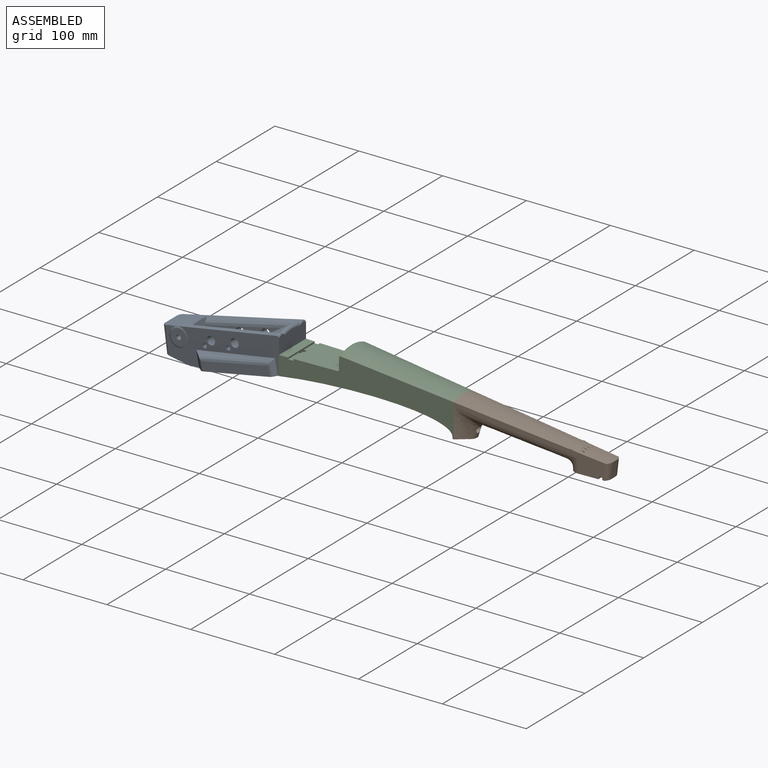
[diagram: assembled view]
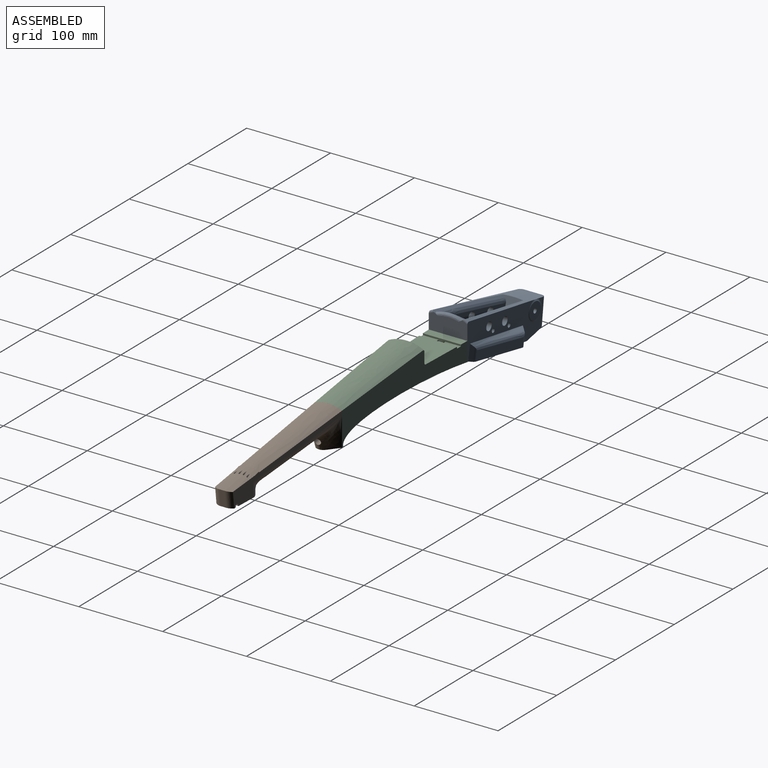
[diagram: assembled view, second angle]
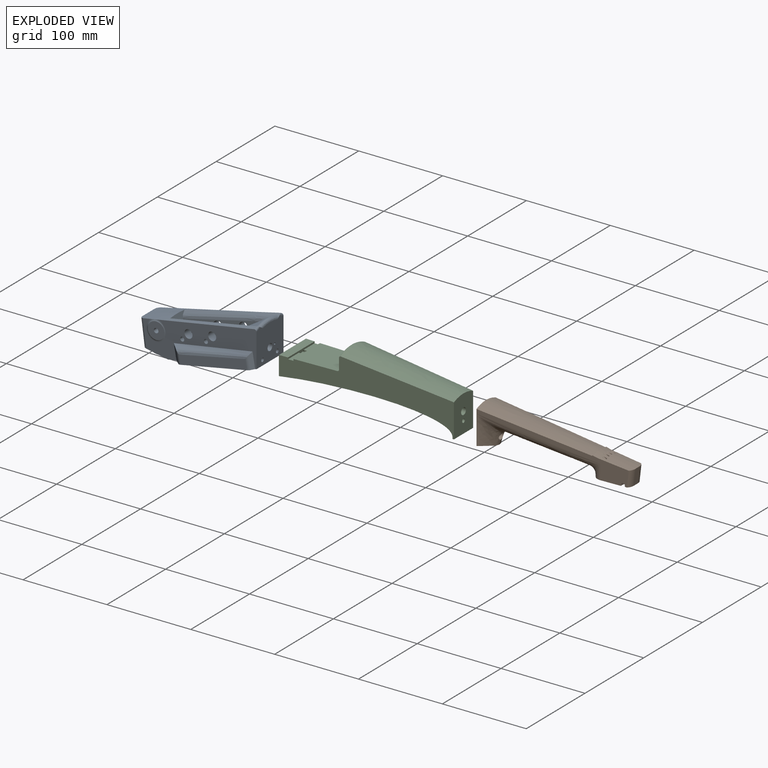
[diagram: exploded view]
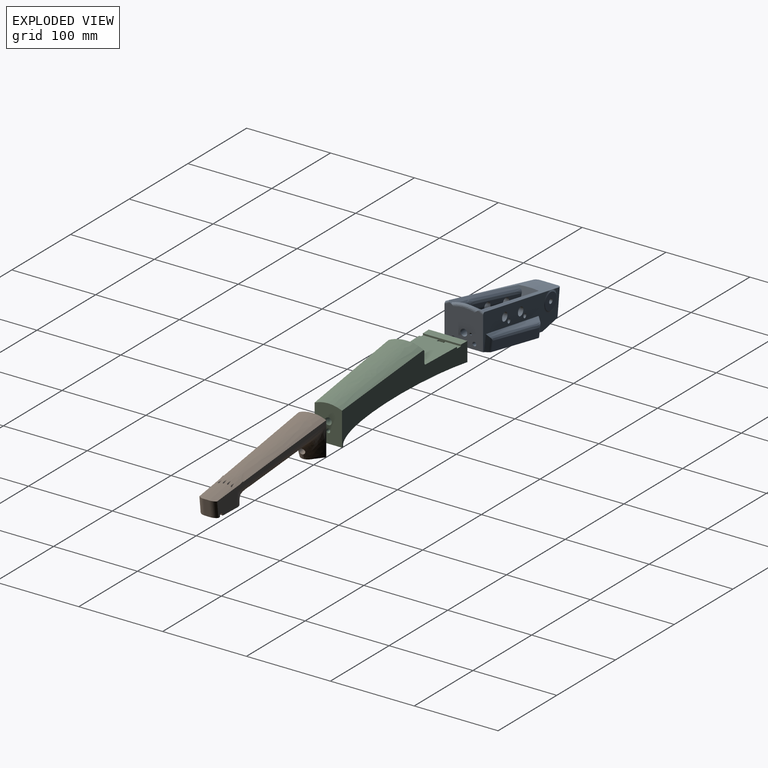
[diagram: exploded view, second angle]
ASSEMBLY  parts=3 mates=2
PART A: 106 faces, bbox 151.7x75x73.2 mm
  f0: plane 140.89x64.12mm, normal (-0.06,-1,0), area 3257.7mm2, adj f2,f10,f18,f20,f25,f26,f32,f35
  f1: plane 140.89x64.12mm, normal (-0.06,1,0), area 3258.4mm2, adj f2,f11,f18,f20,f23,f24,f33,f36
  f2: plane 47.82x44.77mm, normal (1,0,0), area 1824.9mm2, adj f0,f1,f12,f20,f27,f47,f48,f49
  f3: plane 30x27.35mm, normal (-0.14,0,0.99), area 657.1mm2, adj f4,f20,f68
  f4: torus R=16mm, axis (0.14,0,-0.99), area 135.3mm2, adj f3,f5,f6,f10,f11,f20
  f5: bspline ~2.96x1.23mm, area 0.5mm2, adj f4,f20
  f6: bspline ~3.21x1.27mm, area 0.5mm2, adj f4,f20
  f7: plane 43x13.75mm, normal (0.98,0,-0.19), area 557mm2, adj f9,f20,f94,f95,f96,f97,f102,f103
  f8: plane 43.44x14.19mm, normal (-0.98,0,0.19), area 497.2mm2, adj f9,f20,f77,f79,f81,f84,f104,f105
  f9: plane 76.59x47mm, normal (0.19,0,0.98), area 3634.7mm2, adj f7,f8,f45,f46,f77,f79,f102,f103
  f10: plane 31.76x17.52mm, normal (-0.14,0,0.99), area 101.5mm2, adj f0,f4,f19,f20,f61
  f11: plane 31.76x17.52mm, normal (-0.14,0,0.99), area 101.5mm2, adj f1,f4,f19,f20,f62
  f12: plane 0.35x0.05mm, normal (0.05,1,0), area 0mm2, adj f2,f47,f51
  f13: plane 6.9x4.47mm, normal (0.05,-1,0), area 10.4mm2, adj f15,f28,f55,f56,f57
  f14: plane 81.51x31.28mm, normal (0.06,1,0), area 1118.3mm2, adj f16,f17,f21,f22,f25,f26,f29,f34
  f15: plane 81.51x31.28mm, normal (0.06,-1,0), area 1118.3mm2, adj f13,f16,f17,f21,f22,f23,f24,f34
  f16: plane 23.07x15.92mm, normal (-1,0,0), area 354.1mm2, adj f14,f15,f28,f34
  f17: plane 19.85x4.82mm, normal (0,0,-1), area 94.4mm2, adj f14,f15,f22,f34
  f18: bspline ~145x46.9mm, area 2078.3mm2, adj f0,f1,f19,f21,f49,f50,f51,f52
  f19: plane 30.23x20.99mm, normal (-0.99,0,0.13), area 633.4mm2, adj f10,f11,f18,f61,f62
  f20: plane 112.77x55.06mm, normal (0.19,0,0.98), area 2146.5mm2, adj f0,f1,f2,f3,f4,f5,f6,f7
  f21: plane 24.84x22.16mm, normal (0.97,0,-0.26), area 345.7mm2, adj f14,f15,f18,f22,f52,f54,f55,f59
  f22: plane 43.99x19.32mm, normal (-0.19,0,-0.98), area 756.1mm2, adj f14,f15,f17,f21
  f23: cylinder r=5mm len=10.54mm, axis (-0.06,1,0), area 314.2mm2, adj f1,f15
  f24: cylinder r=5mm len=10.54mm, axis (-0.06,1,0), area 314.2mm2, adj f1,f15
  f25: cylinder r=5mm len=10.54mm, axis (-0.06,-1,0), area 314.2mm2, adj f0,f14
  f26: cylinder r=5mm len=10.54mm, axis (-0.06,-1,0), area 314.2mm2, adj f0,f14
  f27: plane 0.35x0.05mm, normal (0.05,-1,0), area 0mm2, adj f2,f48,f53
  f28: bspline ~32.91x27mm, area 709.7mm2, adj f13,f16,f29,f47,f48,f51,f53,f56
  f29: plane 6.9x4.47mm, normal (0.05,1,0), area 10.4mm2, adj f14,f28,f58,f59,f60
  f30: plane 81.22x26.74mm, normal (0,1,0), area 897mm2, adj f20,f42,f43,f44
  f31: plane 81.22x26.74mm, normal (0,-1,0), area 897mm2, adj f20,f39,f40,f41
  f32: bspline ~100.57x24.11mm, area 543.5mm2, adj f0,f35,f37,f40
  f33: bspline ~100.57x24.11mm, area 543.5mm2, adj f1,f36,f38,f43
  f34: plane 28.92x23.06mm, normal (-0.19,0,-0.98), area 631.7mm2, adj f14,f15,f16,f17
  f35: plane 18.65x5.97mm, normal (0.69,-0.71,-0.13), area 75mm2, adj f0,f20,f32,f40,f41
  f36: plane 18.65x5.97mm, normal (0.69,0.71,-0.13), area 75mm2, adj f1,f20,f33,f43,f44
  f37: plane 17.84x11.89mm, normal (-0.7,-0.71,0.13), area 198mm2, adj f0,f20,f32,f39,f40
  f38: plane 17.84x11.89mm, normal (-0.7,0.71,0.13), area 198mm2, adj f1,f20,f33,f42,f43
  f39: cylinder r=5mm len=14.61mm, axis (0.18,0,0.98), area 48.9mm2, adj f20,f31,f37,f40
  f40: bspline ~109.87x25.82mm, area 445mm2, adj f31,f32,f35,f37,f39,f41
  f41: cylinder r=5mm len=15.66mm, axis (-0.19,0,-0.98), area 52.9mm2, adj f20,f31,f35,f40
  f42: cylinder r=5mm len=14.61mm, axis (-0.18,0,-0.98), area 48.9mm2, adj f20,f30,f38,f43
  f43: bspline ~109.36x25.72mm, area 445mm2, adj f30,f33,f36,f38,f42,f44
  f44: cylinder r=5mm len=15.66mm, axis (0.19,0,0.98), area 52.9mm2, adj f20,f30,f36,f43
  f45: plane 75.31x27.75mm, normal (0,-1,0), area 1036mm2, adj f9,f20,f102,f104
  f46: plane 75.31x27.75mm, normal (0,1,0), area 1036mm2, adj f9,f20,f103,f105
  f47: bspline ~39.25x13.59mm, area 99.6mm2, adj f2,f12,f28,f48,f51
  f48: bspline ~39.25x13.59mm, area 99.6mm2, adj f2,f27,f28,f47,f53
  f49: bspline ~13.84x7.98mm, area 20.1mm2, adj f0,f2,f18,f51
  f50: bspline ~13.84x7.99mm, area 20.1mm2, adj f1,f2,f18,f53
  f51: bspline ~30.88x10.34mm, area 118.7mm2, adj f2,f12,f18,f28,f47,f49,f52,f58
  f52: bspline ~93.31x23.83mm, area 347.2mm2, adj f18,f21,f51,f59,f60
  f53: bspline ~30.88x10.34mm, area 118.7mm2, adj f2,f18,f27,f28,f48,f50,f54,f56
  f54: bspline ~93.31x23.83mm, area 347.2mm2, adj f18,f21,f53,f55,f57
  f55: bspline ~99.79x25.73mm, area 471.7mm2, adj f13,f15,f21,f54,f57
  f56: bspline ~26.11x10.26mm, area 83.7mm2, adj f13,f28,f53,f57
  f57: bspline ~13.63x7.56mm, area 3.8mm2, adj f13,f53,f54,f55,f56
  f58: bspline ~26.1x10.26mm, area 83.7mm2, adj f28,f29,f51,f60
  f59: bspline ~99.77x25.72mm, area 471.7mm2, adj f14,f21,f29,f52,f60
  f60: bspline ~13.63x7.56mm, area 3.8mm2, adj f29,f51,f52,f58,f59
  f61: cylinder r=5mm len=32.54mm, axis (-0.13,0.01,-0.99), area 237.5mm2, adj f0,f10,f18,f19
  f62: cylinder r=5mm len=32.54mm, axis (0.13,0.01,0.99), area 237.5mm2, adj f1,f11,f18,f19
  f63: plane 20.42x20.42mm, normal (0,1,0), area 290.4mm2, adj f64,f67
  f64: cylinder r=2.75mm len=34mm, axis (0,1,0), area 587.5mm2, adj f63,f65
  f65: plane 20.9x20.9mm, normal (0,-1,0), area 290.4mm2, adj f64,f66
  f66: bspline ~24.14x23.68mm, area 152.7mm2, adj f0,f18,f65
  f67: bspline ~24.15x23.68mm, area 152.7mm2, adj f1,f18,f63
  f68: cylinder r=2.75mm len=15.63mm, axis (-0.14,0,0.99), area 259.2mm2, adj f3,f97
  f69: cylinder r=2.5mm len=8.26mm, axis (-0.06,-1,0), area 125.7mm2, adj f0,f70
  f70: plane 5x4.99mm, normal (-0.06,-1,0), area 19.6mm2, adj f69
  f71: cylinder r=2.5mm len=8.26mm, axis (-0.06,-1,0), area 125.7mm2, adj f0,f72
  f72: plane 5x4.99mm, normal (-0.06,-1,0), area 19.6mm2, adj f71
  f73: cylinder r=2.5mm len=8.26mm, axis (-0.06,1,0), area 125.7mm2, adj f1,f74
  f74: plane 5x4.99mm, normal (-0.06,1,0), area 19.6mm2, adj f73
  f75: cylinder r=2.5mm len=8.26mm, axis (-0.06,1,0), area 125.7mm2, adj f1,f76
  f76: plane 5x4.99mm, normal (-0.06,1,0), area 19.6mm2, adj f75
  f77: cylinder r=1.16mm len=22.29mm, axis (0.87,0.41,-0.28), area 119.8mm2, adj f2,f8,f9
  f78: plane 8.2x8.19mm, normal (1,0,0.04), area 52.8mm2, adj f79
  f79: cylinder r=4.1mm len=25.11mm, axis (-1,0,-0.04), area 628.4mm2, adj f2,f8,f9,f78
  f80: plane 8x7.86mm, normal (-0.98,0,0.19), area 34.4mm2, adj f81,f82
  f81: cylinder r=4mm len=8.8mm, axis (-0.98,0,0.19), area 125.7mm2, adj f8,f80
  f82: cylinder r=2.25mm len=5.36mm, axis (-0.98,0,0.19), area 64.9mm2, adj f2,f80
  f83: plane 8x7.86mm, normal (-0.98,0,0.19), area 34.4mm2, adj f84,f85
  f84: cylinder r=4mm len=8.8mm, axis (-0.98,0,0.19), area 125.7mm2, adj f8,f83
  f85: cylinder r=2.25mm len=5.36mm, axis (-0.98,0,0.19), area 64.9mm2, adj f2,f83
  f86: cylinder r=1mm len=10.2mm, axis (0.19,0,0.98), area 62.8mm2, adj f20,f87
  f87: plane 2x1.96mm, normal (0.19,0,0.98), area 3.1mm2, adj f86
  f88: cylinder r=1mm len=10.2mm, axis (0.19,0,0.98), area 62.8mm2, adj f20,f89
  f89: plane 2x1.96mm, normal (0.19,0,0.98), area 3.1mm2, adj f88
  f90: cylinder r=1mm len=10.2mm, axis (0.19,0,0.98), area 62.8mm2, adj f20,f91
  f91: plane 2x1.96mm, normal (0.19,0,0.98), area 3.1mm2, adj f90
  f92: cylinder r=1mm len=10.2mm, axis (0.19,0,0.98), area 62.8mm2, adj f20,f93
  f93: plane 2x1.96mm, normal (0.19,0,0.98), area 3.1mm2, adj f92
  f94: plane 39.03x10.56mm, normal (0,-1,0), area 192.8mm2, adj f7,f96,f97,f98
  f95: plane 39.03x10.56mm, normal (0,1,0), area 192.8mm2, adj f7,f96,f97,f99
  f96: plane 39.75x8.5mm, normal (-0.14,0,0.99), area 307.2mm2, adj f7,f94,f95,f98,f99,f101
  f97: plane 41.46x8.5mm, normal (0.14,0,-0.99), area 321.9mm2, adj f7,f68,f94,f95,f98,f99
  f98: plane 5.3x4.25mm, normal (0.86,-0.5,0.12), area 24.5mm2, adj f94,f96,f97,f99
  f99: plane 5.3x4.25mm, normal (0.86,0.5,0.12), area 24.5mm2, adj f95,f96,f97,f98
  f100: plane 5.5x5.44mm, normal (-0.14,0,0.99), area 23.8mm2, adj f101
  f101: cylinder r=2.75mm len=5.59mm, axis (-0.14,0,0.99), area 17.3mm2, adj f96,f100
  f102: cylinder r=2mm len=14.13mm, axis (-0.19,0,-0.98), area 44mm2, adj f7,f9,f20,f45
  f103: cylinder r=2mm len=14.13mm, axis (-0.19,0,-0.98), area 44mm2, adj f7,f9,f20,f46
  f104: cylinder r=2mm len=14.13mm, axis (-0.19,0,-0.98), area 44mm2, adj f8,f9,f20,f45
  f105: cylinder r=2mm len=14.13mm, axis (-0.19,0,-0.98), area 44mm2, adj f8,f9,f20,f46
PART B: 67 faces, bbox 318.1x44.8x65.7 mm
  f0: cylinder r=2.25mm len=4.5mm, axis (0,0,1), area 42mm2, adj f39,f41,f61
  f1: plane 43.7x32.96mm, normal (-1,0,0), area 1293.9mm2, adj f36,f37,f41,f55,f56,f57,f58,f61
  f2: torus R=10mm, axis (0,-1,0), area 7.1mm2, adj f3,f13,f20,f22
  f3: cylinder r=1mm len=2.87mm, axis (-0.88,0,-0.48), area 4.5mm2, adj f2,f23
  f4: torus R=10mm, axis (0,-1,0), area 9.6mm2, adj f5,f14,f24
  f5: cylinder r=1mm len=4.68mm, axis (-0.88,0,-0.48), area 10mm2, adj f4,f25
  f6: torus R=10mm, axis (0,-1,0), area 9.6mm2, adj f7,f15,f26
  f7: cylinder r=1mm len=4.68mm, axis (-0.88,0,-0.48), area 10mm2, adj f6,f27
  f8: torus R=10mm, axis (0,-1,0), area 7.1mm2, adj f9,f16,f28,f30
  f9: cylinder r=1mm len=2.87mm, axis (-0.88,0,-0.48), area 4.5mm2, adj f8,f31
  f10: bspline ~19.35x19mm, area 181.6mm2, adj f11,f42,f43,f44
  f11: bspline ~10.17x9.04mm, area 31.5mm2, adj f10,f12,f42,f44
  f12: bspline ~19.35x19mm, area 181.6mm2, adj f11,f33,f42,f44
  f13: cylinder r=1mm len=22.92mm, axis (0.74,0,0.67), area 181.2mm2, adj f2,f21,f46
  f14: cylinder r=1mm len=22.92mm, axis (0.74,0,0.67), area 182.4mm2, adj f4,f46
  f15: cylinder r=1mm len=22.92mm, axis (0.74,0,0.67), area 182.4mm2, adj f6,f46
  f16: cylinder r=1mm len=22.92mm, axis (0.74,0,0.67), area 181.2mm2, adj f8,f29,f46
  f17: cylinder r=10mm len=19.79mm, axis (0.12,0,-0.99), area 149.1mm2, adj f18,f48,f49,f50
  f18: plane 19.13x6.76mm, normal (0.99,0,0.12), area 128.6mm2, adj f17,f19,f48,f50
  f19: cylinder r=10mm len=19.79mm, axis (-0.12,0,0.99), area 149.1mm2, adj f18,f32,f48,f50
  f20: bspline ~4.79x1.45mm, area 2mm2, adj f2,f21,f23,f50
  f21: bspline ~2.95x2.61mm, area 3.8mm2, adj f13,f20,f22,f50
  f22: bspline ~4.82x1.49mm, area 2.1mm2, adj f2,f21,f23,f50
  f23: bspline ~4.07x2.87mm, area 2.8mm2, adj f3,f20,f22,f50
  f24: bspline ~3.83x3.04mm, area 6.2mm2, adj f4,f25,f50
  f25: bspline ~5.69x3.04mm, area 5.8mm2, adj f5,f24,f50
  f26: bspline ~3.83x3.03mm, area 6.2mm2, adj f6,f27,f50
  f27: bspline ~5.69x3.04mm, area 5.8mm2, adj f7,f26,f50
  f28: bspline ~4.99x1.55mm, area 2.1mm2, adj f8,f29,f31,f50
  f29: bspline ~2.95x2.61mm, area 3.8mm2, adj f16,f28,f30,f50
  f30: bspline ~4.72x1.43mm, area 2mm2, adj f8,f29,f31,f50
  f31: bspline ~4.07x2.97mm, area 2.8mm2, adj f9,f28,f30,f50
  f32: plane 18.66x2.41mm, normal (0.7,0.71,0.08), area 4.6mm2, adj f19,f48,f50,f55
  f33: cylinder r=10mm len=17.6mm, axis (0,0,-1), area 111.9mm2, adj f12,f44,f55
  f34: bspline ~32.73x30.02mm, area 419.2mm2, adj f35,f36,f42
  f35: cylinder r=4mm len=10.99mm, axis (0.97,0,0.22), area 215.8mm2, adj f34,f36,f40
  f36: bspline ~34.9x32.73mm, area 1168.9mm2, adj f1,f34,f35,f37
  f37: plane 36.05x19.46mm, normal (0,0,1), area 306.6mm2, adj f1,f36,f38
  f38: cylinder r=2.25mm len=4.5mm, axis (0,0,1), area 56.5mm2, adj f37,f62
  f39: plane 4.5x4.19mm, normal (0,0,1), area 13.4mm2, adj f0,f41
  f40: plane 8x7.8mm, normal (0.97,0,0.22), area 34.4mm2, adj f35,f41
  f41: cylinder r=2.25mm len=11.93mm, axis (0.97,0,0.22), area 148.6mm2, adj f0,f1,f39,f40
  f42: bspline ~144.38x32.73mm, area 4630.2mm2, adj f10,f11,f12,f34,f55,f56
  f43: cylinder r=10mm len=17.6mm, axis (0,0,-1), area 111.9mm2, adj f10,f44,f56
  f44: plane 34.51x23.77mm, normal (0,0,1), area 729.4mm2, adj f10,f11,f12,f33,f43,f45,f55,f56
  f45: cylinder r=1mm len=21.73mm, axis (0,1,0), area 37.7mm2, adj f44,f46,f55,f56
  f46: cylinder r=2mm len=21.67mm, axis (0,1,0), area 136.8mm2, adj f13,f14,f15,f16,f45,f47,f55,f56
  f47: cylinder r=1mm len=21.41mm, axis (0,1,0), area 37.2mm2, adj f46,f48,f55,f56
  f48: plane 21.51x4.79mm, normal (0,0,1), area 84.4mm2, adj f17,f18,f19,f32,f47,f49,f55,f56
  f49: plane 18.66x2.41mm, normal (0.7,-0.71,0.08), area 4.6mm2, adj f17,f48,f50,f56
  f50: bspline ~40.22x23.53mm, area 817.3mm2, adj f17,f18,f19,f20,f21,f22,f23,f24
  f51: bspline ~29.31x9.39mm, area 139mm2, adj f50,f52,f55,f56
  f52: bspline ~25.19x2.63mm, area 13.4mm2, adj f51,f53,f55,f56
  f53: plane 23.9x2.08mm, normal (-1,0,0), area 1.7mm2, adj f52,f54,f55,f56
  f54: bspline ~25.79x2.85mm, area 12.4mm2, adj f53,f55,f56,f57
  f55: plane 177.7x40mm, normal (0.03,1,0), area 1384.2mm2, adj f1,f32,f33,f42,f44,f45,f46,f47
  f56: plane 177.7x40mm, normal (0.03,-1,0), area 1384.7mm2, adj f1,f42,f43,f44,f45,f46,f47,f48
  f57: bspline ~275x41.5mm, area 3944.2mm2, adj f1,f54,f55,f56
  f58: cylinder r=4.1mm len=141.45mm, axis (-1,0,-0.04), area 3618.7mm2, adj f1,f59,f60
  f59: plane 8.2x8.19mm, normal (-1,0,-0.04), area 52.8mm2, adj f58
  f60: cylinder r=4.1mm len=5.97mm, axis (1,0,0.04), area 16mm2, adj f58
  f61: plane 10.16x7.2mm, normal (0,0,1), area 49.7mm2, adj f0,f1,f63,f64,f65,f66
  f62: plane 10.16x7.2mm, normal (0,0,-1), area 49.7mm2, adj f1,f38,f63,f64,f65,f66
  f63: plane 8.08x3mm, normal (0,-1,0), area 24.2mm2, adj f1,f61,f62,f64
  f64: plane 3.6x3mm, normal (-0.87,-0.5,0), area 12.5mm2, adj f61,f62,f63,f65
  f65: plane 3.6x3mm, normal (-0.87,0.5,0), area 12.5mm2, adj f61,f62,f64,f66
  f66: plane 8.08x3mm, normal (0,1,0), area 24.2mm2, adj f1,f61,f62,f65
PART C: 60 faces, bbox 352.5x48.2x62.7 mm
  f0: plane 46.04x1.02mm, normal (-0.21,0,0.98), area 45.7mm2, adj f1,f2,f7,f52
  f1: bspline ~208.08x20.51mm, area 222mm2, adj f0,f7,f16,f24,f52
  f2: bspline ~204.46x20.52mm, area 220.9mm2, adj f0,f7,f15,f25,f52
  f3: cylinder r=1.16mm len=15.7mm, axis (0.87,0.41,-0.28), area 99.1mm2, adj f8,f9,f10,f52
  f4: cylinder r=4.1mm len=204.3mm, axis (-1,0,-0.04), area 5258.1mm2, adj f30,f32,f33,f52,f53
  f5: cylinder r=2.25mm len=20.89mm, axis (-0.98,0,0.19), area 288.5mm2, adj f47,f52
  f6: cylinder r=2.25mm len=20.89mm, axis (-0.98,0,0.19), area 288.5mm2, adj f39,f52
  f7: extruded ~200.9x44.02mm, area 7622.8mm2, adj f0,f1,f2,f21,f28,f29,f30,f31
  f8: plane 45.39x3.5mm, normal (1,0,0), area 100.6mm2, adj f3,f9,f10,f11,f15,f16,f18,f19
  f9: plane 6.5x1.5mm, normal (0,1,0), area 9.1mm2, adj f3,f8,f10,f11,f20
  f10: plane 8x6.5mm, normal (0,0,-1), area 44.7mm2, adj f3,f8,f9,f20,f26
  f11: plane 18.7x6.5mm, normal (0,0,-1), area 120.8mm2, adj f8,f9,f16,f20
  f12: plane 51x44.97mm, normal (0,0,-1), area 2208.3mm2, adj f15,f16,f20,f22
  f13: bspline ~275x41.5mm, area 5091.1mm2, adj f15,f16,f23,f53
  f14: plane 41.51x17.72mm, normal (-1,0,0), area 664.4mm2, adj f15,f16,f22,f23
  f15: plane 204.48x56.23mm, normal (0.03,1,0), area 5169.2mm2, adj f2,f8,f12,f13,f14,f17,f18,f19
  f16: plane 204.48x56.22mm, normal (0.03,-1,0), area 5199.6mm2, adj f1,f8,f11,f12,f13,f14,f17,f18
  f17: plane 32.84x2.1mm, normal (0,0,1), area 68.6mm2, adj f15,f16,f21,f24,f25,f53
  f18: plane 46.08x10.5mm, normal (0,0,-1), area 480.3mm2, adj f8,f15,f16,f52
  f19: plane 18.7x6.5mm, normal (0,0,-1), area 120.8mm2, adj f8,f15,f20,f26
  f20: plane 44.97x3.5mm, normal (-1,0,0), area 101.9mm2, adj f9,f10,f11,f12,f15,f16,f19,f26
  f21: plane 30.84x2mm, normal (-1,0,0), area 61.7mm2, adj f7,f17,f24,f25
  f22: cylinder r=2mm len=41.63mm, axis (0,-1,0), area 130.6mm2, adj f12,f14,f15,f16
  f23: bspline ~46.31x8.27mm, area 147.4mm2, adj f13,f14,f15,f16
  f24: plane 2x1mm, normal (-0.93,-0.37,0), area 2.2mm2, adj f1,f16,f17,f21
  f25: plane 2x1mm, normal (-0.93,0.37,0), area 2.2mm2, adj f2,f15,f17,f21
  f26: plane 6.5x1.5mm, normal (0,-1,0), area 9.8mm2, adj f8,f10,f19,f20
  f27: cylinder r=2.25mm len=10.59mm, axis (0.97,0,0.22), area 131.6mm2, adj f31,f53
  f28: plane 8.1x5.51mm, normal (0,1,0), area 27.5mm2, adj f7,f30,f31,f32
  f29: plane 8.1x5.51mm, normal (0,-1,0), area 27.5mm2, adj f7,f30,f31,f33
  f30: plane 8.12x7.01mm, normal (0.97,0,0.22), area 37mm2, adj f4,f7,f28,f29,f32,f33,f35
  f31: plane 9.03x7mm, normal (-0.97,0,-0.22), area 41.9mm2, adj f7,f27,f28,f29,f32,f33
  f32: plane 4.41x3.56mm, normal (-0.19,0.5,0.84), area 15.8mm2, adj f4,f28,f30,f31,f33
  f33: plane 4.41x3.56mm, normal (-0.19,-0.5,0.84), area 15.8mm2, adj f4,f29,f30,f31,f32
  f34: plane 4.5x4.39mm, normal (0.97,0,0.22), area 15.9mm2, adj f35
  f35: cylinder r=2.25mm len=6.86mm, axis (0.97,0,0.22), area 84.8mm2, adj f30,f34
  f36: plane 10.68x5.91mm, normal (0,-1,0), area 41.1mm2, adj f7,f38,f39,f40
  f37: plane 10.68x5.91mm, normal (0,1,0), area 41.1mm2, adj f7,f38,f39,f41
  f38: plane 12.27x7mm, normal (-0.98,0,0.19), area 64.5mm2, adj f7,f36,f37,f40,f41,f43
  f39: plane 11.9x7mm, normal (0.98,0,-0.19), area 61.9mm2, adj f6,f7,f36,f37,f40,f41
  f40: plane 4.31x3.5mm, normal (0.16,-0.5,0.85), area 16.2mm2, adj f36,f38,f39,f41
  f41: plane 4.31x3.5mm, normal (0.16,0.5,0.85), area 16.2mm2, adj f37,f38,f39,f40
  f42: plane 4.5x4.42mm, normal (-0.98,0,0.19), area 15.9mm2, adj f43
  f43: cylinder r=2.25mm len=16.56mm, axis (-0.98,0,0.19), area 226.2mm2, adj f38,f42
  f44: plane 10.68x5.91mm, normal (0,-1,0), area 41.1mm2, adj f7,f46,f47,f48
  f45: plane 10.68x5.91mm, normal (0,1,0), area 41.1mm2, adj f7,f46,f47,f49
  f46: plane 12.27x7mm, normal (-0.98,0,0.19), area 64.5mm2, adj f7,f44,f45,f48,f49,f51
  f47: plane 11.9x7mm, normal (0.98,0,-0.19), area 61.9mm2, adj f5,f7,f44,f45,f48,f49
  f48: plane 4.31x3.5mm, normal (0.16,-0.5,0.85), area 16.2mm2, adj f44,f46,f47,f49
  f49: plane 4.31x3.5mm, normal (0.16,0.5,0.85), area 16.2mm2, adj f45,f46,f47,f48
  f50: plane 4.5x4.42mm, normal (-0.98,0,0.19), area 15.9mm2, adj f51
  f51: cylinder r=2.25mm len=16.56mm, axis (-0.98,0,0.19), area 226.2mm2, adj f46,f50
  f52: plane 47.82x24.54mm, normal (-1,0,0), area 960.6mm2, adj f0,f1,f2,f3,f4,f5,f6,f15
  f53: plane 44.06x33.33mm, normal (1,0,0), area 1315.5mm2, adj f4,f13,f15,f16,f17,f27
  f54: plane 120.02x20mm, normal (-0.12,0,0.99), area 2417.5mm2, adj f55,f57,f58,f59
  f55: plane 20x16.68mm, normal (1,0,0), area 333.5mm2, adj f54,f56,f58,f59
  f56: plane 120.02x20mm, normal (0.04,0,-1), area 2401.9mm2, adj f55,f57,f58,f59
  f57: plane 20x6.66mm, normal (-1,0,0), area 133.1mm2, adj f54,f56,f58,f59
  f58: plane 120.02x21.04mm, normal (0,-1,0), area 1400.1mm2, adj f54,f55,f56,f57
  f59: plane 120.02x21.04mm, normal (0,1,0), area 1400.1mm2, adj f54,f55,f56,f57
PLACE A rot(axis=(1,0,0),180deg) t=(81.11,-99.9,-147.38)mm
PLACE B rot(axis=(1,0,0),180deg) t=(81.11,-99.9,-147.38)mm
PLACE C rot(axis=(1,0,0),180deg) t=(81.11,-99.9,-147.38)mm
MATE fastened C.f53 <-> B.f1  axis (1,0,0) through (75.11,-99.9,-148.26)mm
MATE fastened C.f52 <-> A.f2  axis (-1,0,0) through (-128.89,-99.9,-140.84)mm
